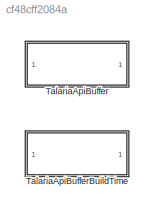
MODEL slx_cf48cff2084a
KIND library
CONFIG AbsTol = auto
CONFIG EnableMultiTasking = off
CONFIG FixedStep = auto
CONFIG MaxStep = auto
CONFIG MinStep = auto
CONFIG RelTol = 1e-3
CONFIG SampleTimeConstraint = Unconstrained
CONFIG SolverName = VariableStepAuto
CONFIG StartTime = 0.0
CONFIG StopTime = 10.0
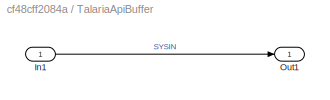
BLOCK [SubSystem] TalariaApiBuffer
  MoveFcn = TalariaApiBufferMask.CB_TriggerInit(gcbh);
BLOCK [Inport] TalariaApiBuffer/In1
BLOCK [Outport] TalariaApiBuffer/Out1
  VectorParamsAs1DForOutWhenUnconnected = off
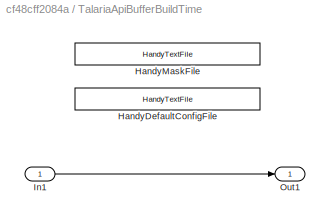
BLOCK [SubSystem] TalariaApiBufferBuildTime
  MoveFcn = TalariaApiBufferMask.CB_TriggerInit(gcbh);
BLOCK [Reference] TalariaApiBufferBuildTime/HandyDefaultConfigFile  REF=HandyTextFile/HandyTextFile
  SourceBlock = HandyTextFile/HandyTextFile
  SourceProductName = Bose Talaria
  SourceType = Talaria Handy Text File
BLOCK [Reference] TalariaApiBufferBuildTime/HandyMaskFile  REF=HandyTextFile/HandyTextFile
  SourceBlock = HandyTextFile/HandyTextFile
  SourceProductName = Bose Talaria
  SourceType = Talaria Handy Text File
BLOCK [Inport] TalariaApiBufferBuildTime/In1
BLOCK [Outport] TalariaApiBufferBuildTime/Out1
  VectorParamsAs1DForOutWhenUnconnected = off
LINE TalariaApiBuffer/In1:1 -> TalariaApiBuffer/Out1:1
LINE TalariaApiBufferBuildTime/In1:1 -> TalariaApiBufferBuildTime/Out1:1
